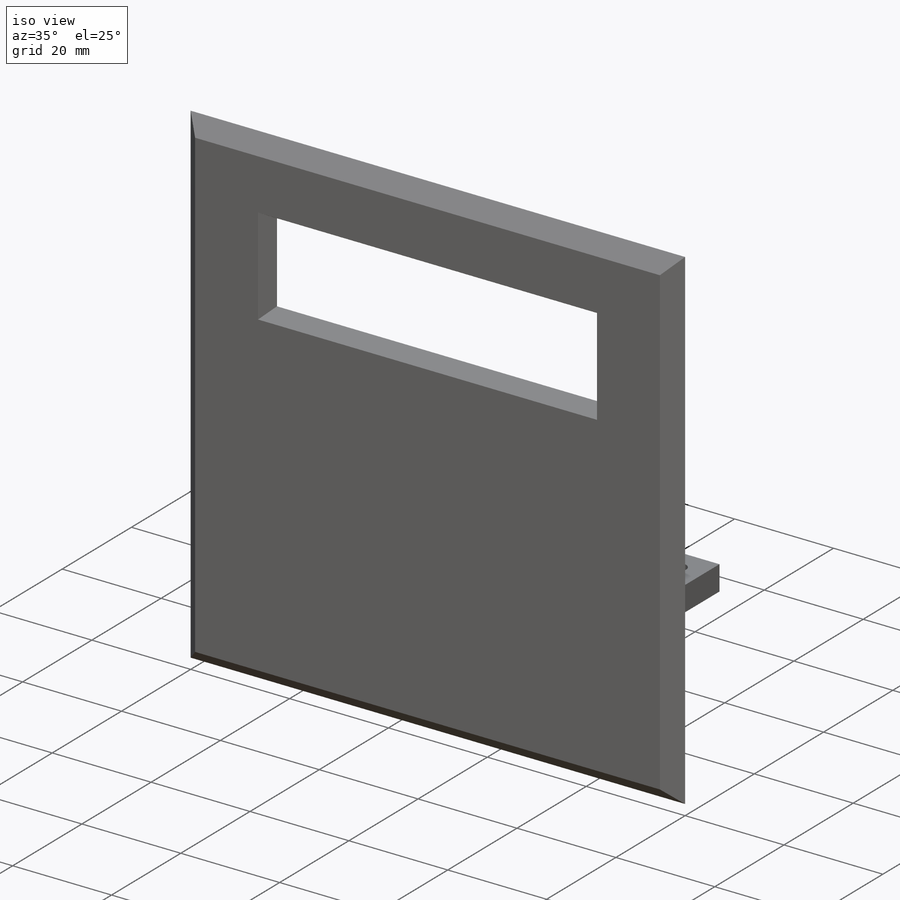
[diagram: iso view]
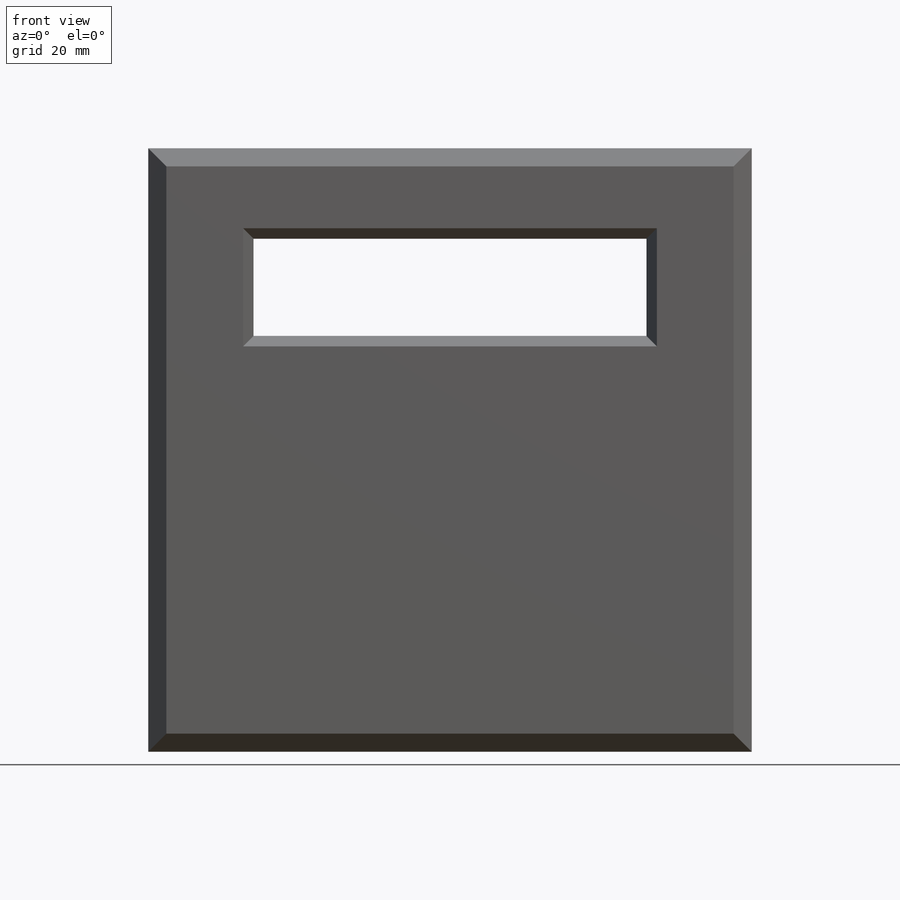
[diagram: front view]
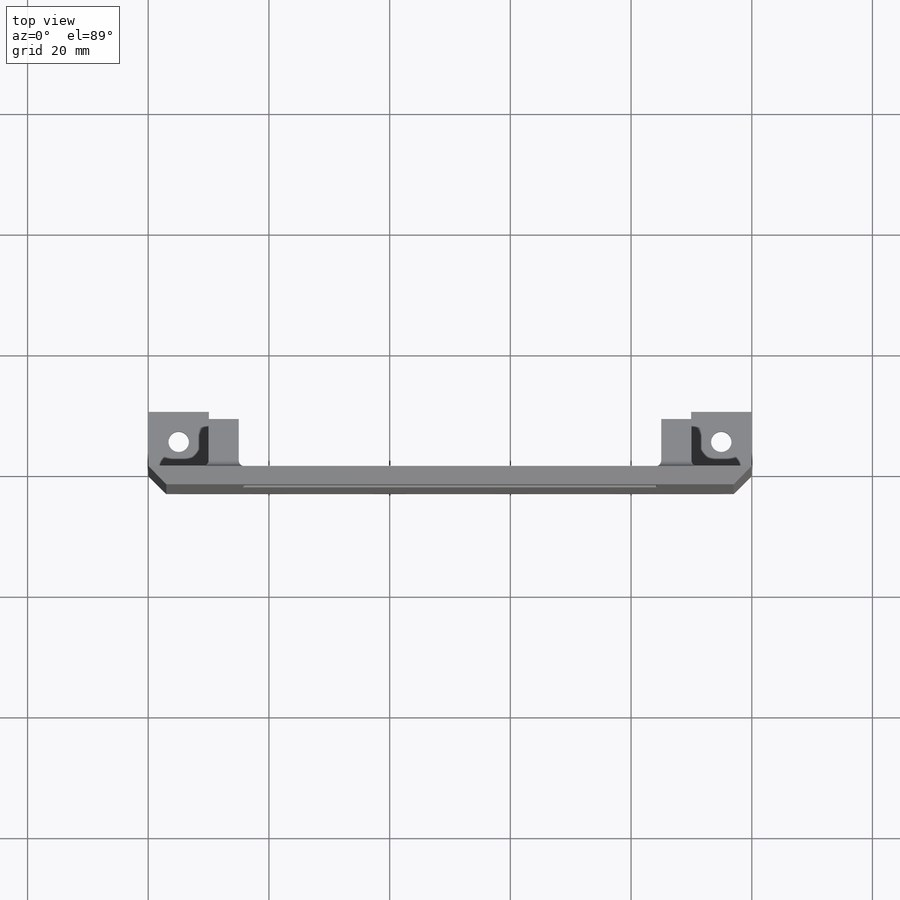
[diagram: top view]
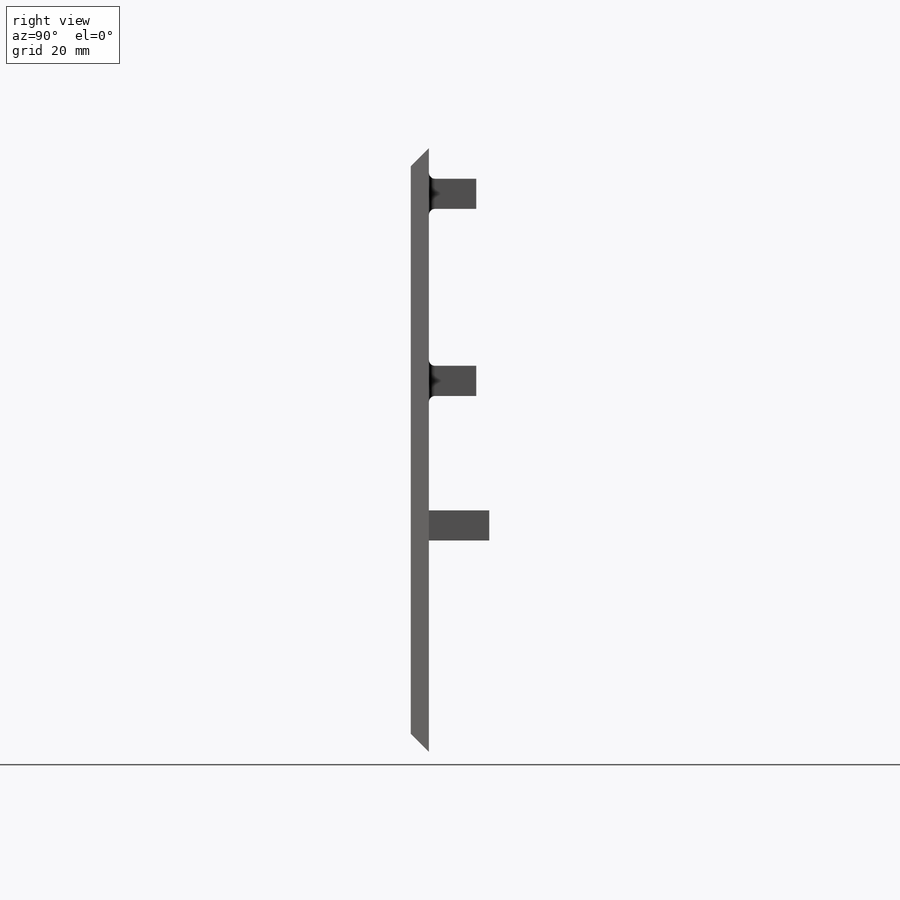
[diagram: right view]
SOLIDWORKS PART (.sldprt)
format: sldprt  version: not decoded by parser v0  size: 544,768 bytes
history: native  units: mm
features: sketch x5, plane x3, extrude x3, cut_extrude x2, chamfer x2, material x1, fillet x1 (+9 scaffold rows collapsed)
feature tree (26):
  scaffold x9  (default folders/planes/origin — collapsed)
  material  "Matériau <non spécifié>"
  plane  "Plan de face"
  plane  "Plan de dessus"
  plane  "Plan de droite"
  sketch  "Esquisse1"  dims[D1=100.0mm D2=100.0mm]
  extrude  "Boss.-Extru.1"  Depth=3mm
  sketch  "Esquisse2"  dims[D1=65.1mm D2=16.1mm D3=17.45mm D4=15.0mm]
  cut_extrude  "Enlèv. mat.-Extru.1"  [1 undecoded]
  chamfer  "Chanfrein1"  Distance=3mm Angle=45deg
  sketch  "Esquisse3"  dims[D17=2.6mm D18=2.6mm D19=2.6mm D20=2.6mm D1=2.45mm D2=2.45mm D3=2.45mm D4=2.45mm D5=5.0mm D6=5.0mm D7=5.0mm D8=5.0mm D9=5.0mm D10=5.0mm D11=5.0mm D12=5.0mm D13=4.95mm D14=4.95mm D15=4.95mm D16=4.95mm]
  extrude  "Boss.-Extru.2"  Depth=7.85mm
  chamfer  "Chanfrein2"  Distance=3mm Angle=30deg
  fillet  "Congé1"  Radius=1mm
  sketch  "Esquisse4"  dims[D1=0.05mm D2=10.0mm D3=5.0mm D4=60.0mm D5=60.0mm D6=0.05mm D7=10.0mm D8=5.0mm]
  extrude  "Boss.-Extru.3"  Depth=10mm
  sketch  "Esquisse5"  dims[D1=3.4mm D2=3.4mm D3=5.05mm D4=5.05mm]
  cut_extrude  "Enlèv. mat.-Extru.2"  Depth=10mm
decode coverage: 12 of 13 modeling features carry decoded parameters
note: 1 parameter value undecoded
note: suppression state not decoded; provenance and decode notes live in map.json
